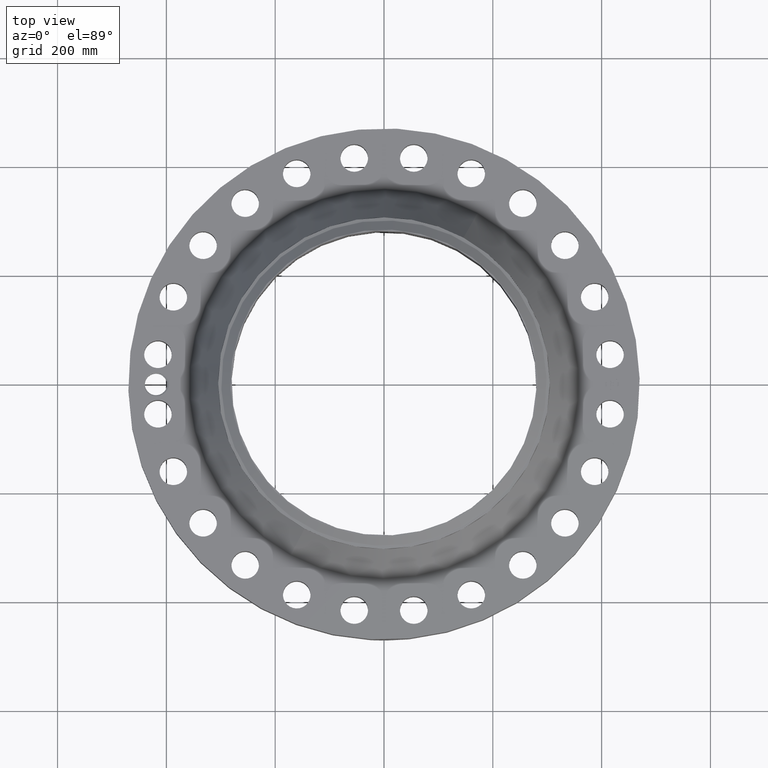
[diagram: clean part render]
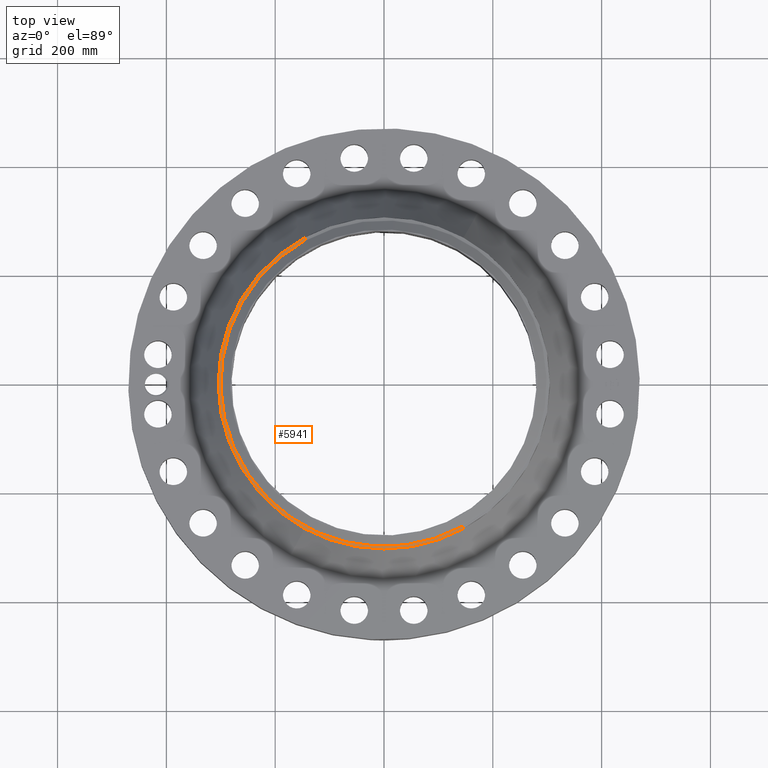
[diagram: same view with one face highlighted and labeled with its STEP entity id]
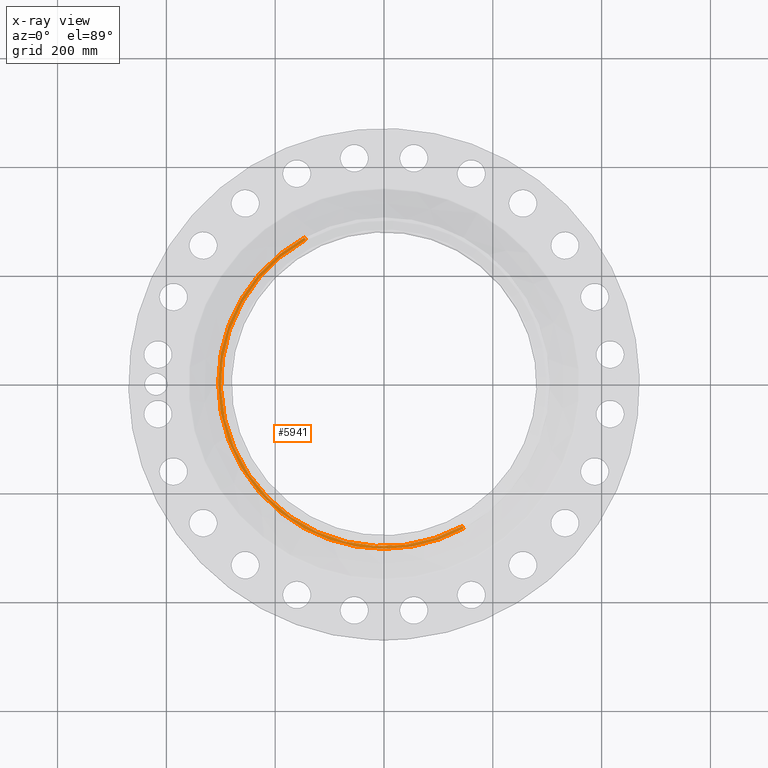
[diagram: x-ray of the same camera — body ghosted, the highlighted face saturated]
A machine part, top view. The second image highlights one B-rep face of the part: STEP entity #5941.
The next image is the same camera in x-ray: the body ghosted, the highlighted face saturated — about 0% of this face is hidden behind the body in this view.
In plain terms, the highlighted conical surface has half-angle 80 deg.
Its self-contained STEP definition (entity closure, byte-faithful):
#4457=AXIS2_PLACEMENT_3D('Circle Axis2P3D',#4455,#4456,$) ;
#4470=AXIS2_PLACEMENT_3D('Circle Axis2P3D',#4468,#4469,$) ;
#5270=AXIS2_PLACEMENT_3D('Circle Axis2P3D',#5268,#5269,$) ;
#5914=AXIS2_PLACEMENT_3D('Cone Axis2P3D',#5911,#5912,#5913) ;
#4438=CARTESIAN_POINT('Vertex',(-5.75310646327,-10.5309907427,7.69747198399)) ;
#4452=CARTESIAN_POINT('Vertex',(5.75310646327,-10.5309907427,7.69747198399)) ;
#4455=CARTESIAN_POINT('Axis2P3D Location',(0.,0.,7.69747198399)) ;
#4468=CARTESIAN_POINT('Axis2P3D Location',(0.,0.,7.69747198399)) ;
#4472=CARTESIAN_POINT('Vertex',(-5.75310646327,10.5309907427,7.69747198399)) ;
#5265=CARTESIAN_POINT('Vertex',(-5.66081407941,10.3620506673,7.73141601925)) ;
#5268=CARTESIAN_POINT('Axis2P3D Location',(0.,0.,7.73141601925)) ;
#5272=CARTESIAN_POINT('Vertex',(5.66081407941,-10.3620506673,7.73141601925)) ;
#5911=CARTESIAN_POINT('Axis2P3D Location',(0.,0.,7.73141601925)) ;
#5916=CARTESIAN_POINT('Line Origine',(-5.70696027134,10.446520705,7.71444400162)) ;
#5921=CARTESIAN_POINT('Line Origine',(5.70696027134,-10.446520705,7.71444400162)) ;
#4456=DIRECTION('Axis2P3D Direction',(0.,0.,-0.0393700787402)) ;
#4469=DIRECTION('Axis2P3D Direction',(0.,0.,-0.0393700787402)) ;
#5269=DIRECTION('Axis2P3D Direction',(0.,0.,0.0393700787402)) ;
#5912=DIRECTION('Axis2P3D Direction',(-0.,-0.,-0.0393700787402)) ;
#5913=DIRECTION('Axis2P3D XDirection',(0.0188750212049,-0.0345504945626,0.)) ;
#5917=DIRECTION('Vector Direction',(-0.0185882672208,0.0340255949157,-0.00683654242783)) ;
#5922=DIRECTION('Vector Direction',(0.0185882672208,-0.0340255949157,-0.00683654242783)) ;
#5918=VECTOR('Line Direction',#5917,0.0393700787402) ;
#5923=VECTOR('Line Direction',#5922,0.0393700787402) ;
#5935=ORIENTED_EDGE('',*,*,#5925,.F.) ;
#5936=ORIENTED_EDGE('',*,*,#5274,.F.) ;
#5937=ORIENTED_EDGE('',*,*,#5920,.T.) ;
#5938=ORIENTED_EDGE('',*,*,#4474,.T.) ;
#5939=ORIENTED_EDGE('',*,*,#4459,.F.) ;
#5941=ADVANCED_FACE('PartBody',(#5940),#5915,.T.) ;
#4458=CIRCLE('generated circle',#4457,12.) ;
#4471=CIRCLE('generated circle',#4470,12.) ;
#5271=CIRCLE('generated circle',#5270,11.80749381) ;
#5915=CONICAL_SURFACE('Cone',#5914,11.80749381,1.3962634016) ;
#4459=EDGE_CURVE('',#4453,#4439,#4458,.T.) ;
#4474=EDGE_CURVE('',#4473,#4439,#4471,.F.) ;
#5274=EDGE_CURVE('',#5266,#5273,#5271,.T.) ;
#5920=EDGE_CURVE('',#5266,#4473,#5919,.T.) ;
#5925=EDGE_CURVE('',#5273,#4453,#5924,.T.) ;
#5934=EDGE_LOOP('',(#5935,#5936,#5937,#5938,#5939)) ;
#5940=FACE_OUTER_BOUND('',#5934,.T.) ;
#5919=LINE('Line',#5916,#5918) ;
#5924=LINE('Line',#5921,#5923) ;
#4439=VERTEX_POINT('',#4438) ;
#4453=VERTEX_POINT('',#4452) ;
#4473=VERTEX_POINT('',#4472) ;
#5266=VERTEX_POINT('',#5265) ;
#5273=VERTEX_POINT('',#5272) ;